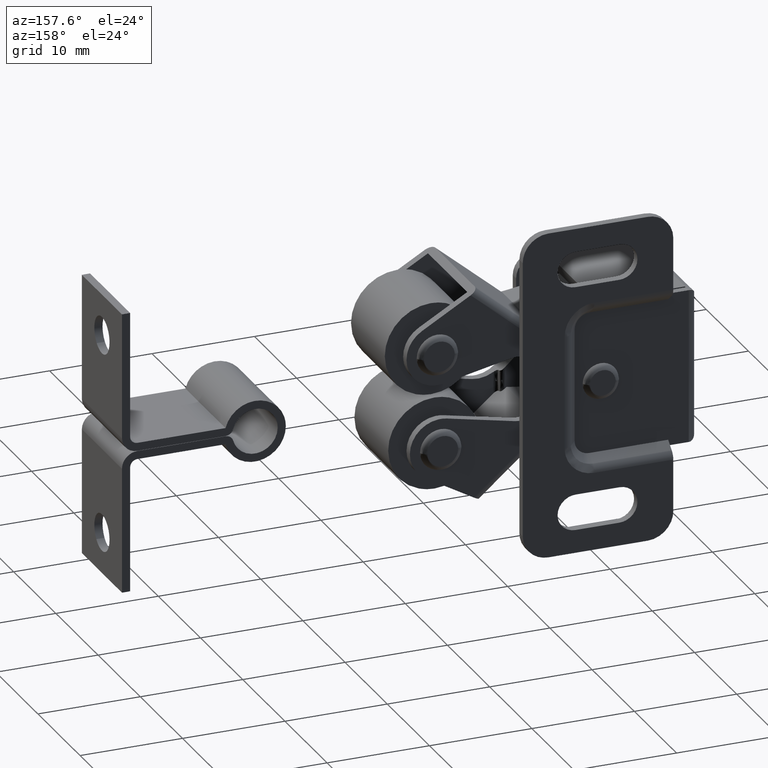
[diagram: clean part render]
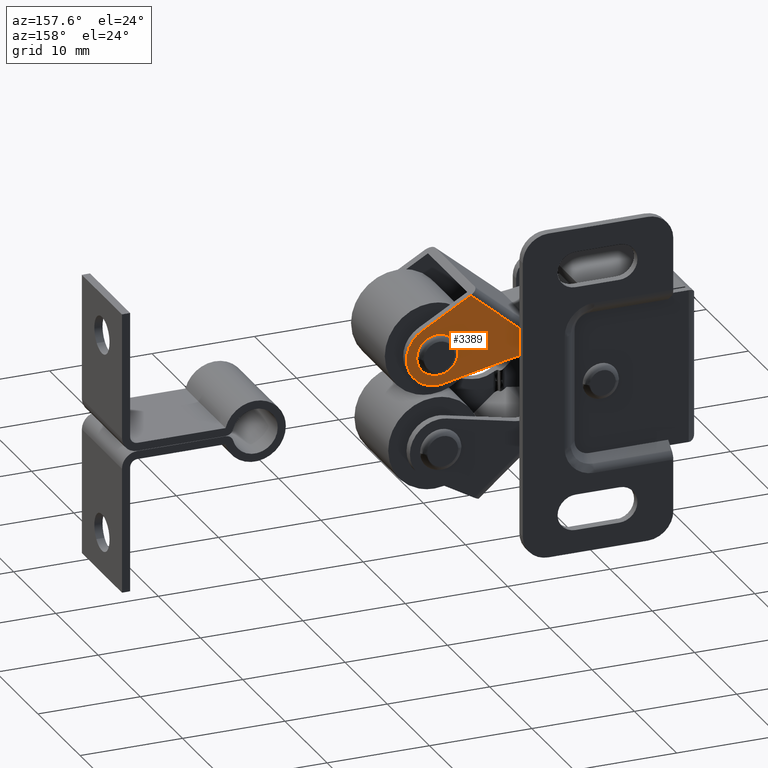
[diagram: same view with one face highlighted and labeled with its STEP entity id]
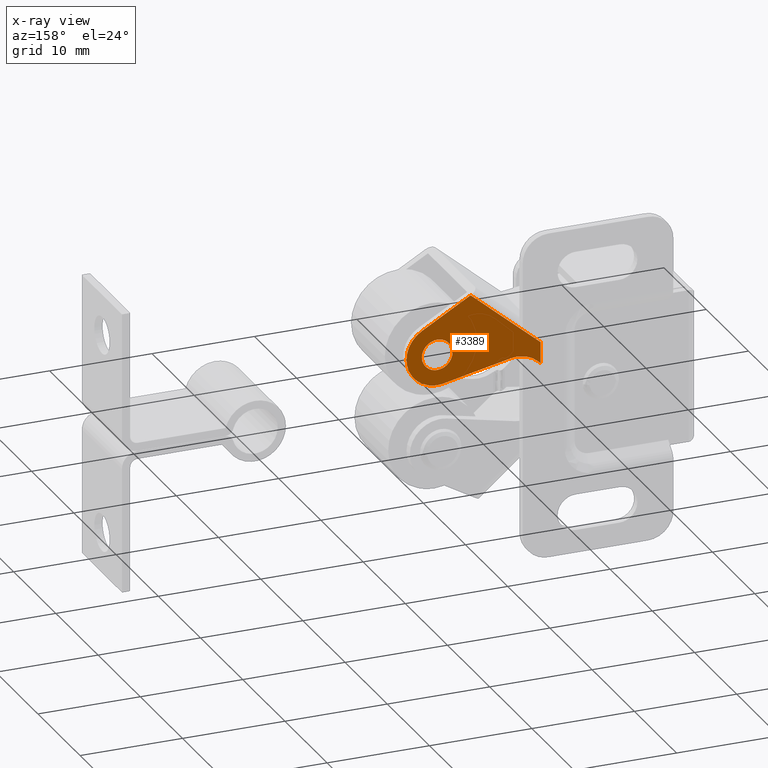
[diagram: x-ray of the same camera — body ghosted, the highlighted face saturated]
A machine part, auxiliary view. The second image highlights one B-rep face of the part: STEP entity #3389.
The next image is the same camera in x-ray: the body ghosted, the highlighted face saturated — about 0% of this face is hidden behind the body in this view.
In plain terms, the highlighted face is a freeform B-spline surface patch.
Its self-contained STEP definition (entity closure, byte-faithful):
#1043=CARTESIAN_POINT('',(23.594095799234140,4.700000011920779,5.513385625375348));
#1044=VERTEX_POINT('',#1043);
#1050=CARTESIAN_POINT('',(24.700012000000001,4.700000011920780,5.999999999999998));
#1051=VERTEX_POINT('',#1050);
#1052=CARTESIAN_POINT('',(23.594095799234140,4.700000011920779,5.513385625375348));
#1053=CARTESIAN_POINT('',(23.707794563583150,4.700000011920783,5.637627717664063));
#1054=CARTESIAN_POINT('',(23.925742891275199,4.700000011920776,5.806763507093655));
#1055=CARTESIAN_POINT('',(24.311433102443051,4.700000011920785,5.964648970616939));
#1056=CARTESIAN_POINT('',(24.557514574832521,4.700000011920768,6.000060767681152));
#1057=CARTESIAN_POINT('',(24.700012000000001,4.700000011920780,5.999999999999998));
#1058=B_SPLINE_CURVE_WITH_KNOTS('',3,(#1052,#1053,#1054,#1055,#1056,#1057),.UNSPECIFIED.,.F.,.U.,(4,1,1,4),(0.000000021328819,0.505210847690838,0.816095662292289,1.243581908247647),.UNSPECIFIED.);
#1059=EDGE_CURVE('',#1044,#1051,#1058,.T.);
#1061=CARTESIAN_POINT('',(26.200011999999319,4.700000011920780,4.499998569444311));
#1062=VERTEX_POINT('',#1061);
#1063=CARTESIAN_POINT('',(24.700012000000001,4.700000011920780,5.999999999999998));
#1064=CARTESIAN_POINT('',(24.835003995594811,4.700000011920781,6.000048619156637));
#1065=CARTESIAN_POINT('',(25.092693191531840,4.700000011920781,5.964968242826621));
#1066=CARTESIAN_POINT('',(25.401124239379399,4.700000011920786,5.837223423240698));
#1067=CARTESIAN_POINT('',(25.667123931221258,4.700000011920759,5.659453988228774));
#1068=CARTESIAN_POINT('',(25.929533706847121,4.700000011920817,5.397248733245958));
#1069=CARTESIAN_POINT('',(26.146699255495768,4.700000011920761,4.990856315215167));
#1070=CARTESIAN_POINT('',(26.200078063578150,4.700000011920778,4.659536330562017));
#1071=CARTESIAN_POINT('',(26.200011999999319,4.700000011920780,4.499998569444311));
#1072=B_SPLINE_CURVE_WITH_KNOTS('',3,(#1063,#1064,#1065,#1066,#1067,#1068,#1069,#1070,#1071),.UNSPECIFIED.,.F.,.U.,(4,1,1,1,1,1,4),(0.000000103832090,0.404972616782594,0.773154750371999,0.994062095879040,1.362192432291320,1.877640366561925,2.356254422811694),.UNSPECIFIED.);
#1073=EDGE_CURVE('',#1051,#1062,#1072,.T.);
#1075=CARTESIAN_POINT('',(25.805928200765859,4.700000011920779,3.486614374624649));
#1076=VERTEX_POINT('',#1075);
#1077=CARTESIAN_POINT('',(26.200011999999319,4.700000011920780,4.499998569444311));
#1078=CARTESIAN_POINT('',(26.200053407385120,4.700000011920775,4.372502576783834));
#1079=CARTESIAN_POINT('',(26.171752761726349,4.700000011920793,4.152318022775201));
#1080=CARTESIAN_POINT('',(26.044859814898370,4.700000011920777,3.802111941125314));
#1081=CARTESIAN_POINT('',(25.907773731179699,4.700000011920782,3.597665721904088));
#1082=CARTESIAN_POINT('',(25.805928200765859,4.700000011920779,3.486614374624649));
#1083=B_SPLINE_CURVE_WITH_KNOTS('',3,(#1077,#1078,#1079,#1080,#1081,#1082),.UNSPECIFIED.,.F.,.U.,(4,1,1,4),(0.000000028254000,0.382481926701507,0.660639802670365,1.112671104029824),.UNSPECIFIED.);
#1084=EDGE_CURVE('',#1062,#1076,#1083,.T.);
#1124=CARTESIAN_POINT('',(24.700012000000001,4.700000011920779,2.999999999999998));
#1125=VERTEX_POINT('',#1124);
#1126=CARTESIAN_POINT('',(25.805928200765859,4.700000011920779,3.486614374624649));
#1127=CARTESIAN_POINT('',(25.674784531261182,4.700000011920785,3.343195714687080));
#1128=CARTESIAN_POINT('',(25.419526054260899,4.700000011920765,3.155646287750409));
#1129=CARTESIAN_POINT('',(25.023845003995739,4.700000011920791,3.022908437656944));
#1130=CARTESIAN_POINT('',(24.803641465157131,4.700000011920776,2.999986374189757));
#1131=CARTESIAN_POINT('',(24.700012000000001,4.700000011920779,2.999999999999998));
#1132=B_SPLINE_CURVE_WITH_KNOTS('',3,(#1126,#1127,#1128,#1129,#1130,#1131),.UNSPECIFIED.,.F.,.U.,(4,1,1,4),(0.000000021327704,0.582931940729099,0.932686436546693,1.243581908247644),.UNSPECIFIED.);
#1133=EDGE_CURVE('',#1076,#1125,#1132,.T.);
#1135=CARTESIAN_POINT('',(23.200012000000680,4.700000011920779,4.500001430555681));
#1136=VERTEX_POINT('',#1135);
#1137=CARTESIAN_POINT('',(24.700012000000001,4.700000011920779,2.999999999999998));
#1138=CARTESIAN_POINT('',(24.491349140998441,4.700000011920777,2.999763459623790));
#1139=CARTESIAN_POINT('',(24.160214396344202,4.700000011920790,3.070249888358926));
#1140=CARTESIAN_POINT('',(23.789092998575430,4.700000011920776,3.292870955774542));
#1141=CARTESIAN_POINT('',(23.503189664273709,4.700000011920778,3.564874017312098));
#1142=CARTESIAN_POINT('',(23.266368109325651,4.700000011920778,3.960122645800154));
#1143=CARTESIAN_POINT('',(23.199849864962619,4.700000011920782,4.315902422920927));
#1144=CARTESIAN_POINT('',(23.200012000000680,4.700000011920779,4.500001430555681));
#1145=B_SPLINE_CURVE_WITH_KNOTS('',3,(#1137,#1138,#1139,#1140,#1141,#1142,#1143,#1144),.UNSPECIFIED.,.F.,.U.,(4,1,1,1,1,4),(0.000000103832539,0.625882202231172,0.994062095879022,1.288552167082864,1.804009362346913,2.356254422811693),.UNSPECIFIED.);
#1146=EDGE_CURVE('',#1125,#1136,#1145,.T.);
#1148=CARTESIAN_POINT('',(23.200012000000680,4.700000011920779,4.500001430555681));
#1149=CARTESIAN_POINT('',(23.199887232145450,4.700000011920777,4.673870101931653));
#1150=CARTESIAN_POINT('',(23.265242377548692,4.700000011920782,5.044659593757802));
#1151=CARTESIAN_POINT('',(23.460815246599498,4.700000011920780,5.368235286680646));
#1152=CARTESIAN_POINT('',(23.594095799234140,4.700000011920779,5.513385625375348));
#1153=B_SPLINE_CURVE_WITH_KNOTS('',3,(#1148,#1149,#1150,#1151,#1152),.UNSPECIFIED.,.F.,.U.,(4,1,4),(0.000000028254584,0.521572264103559,1.112671104029827),.UNSPECIFIED.);
#1154=EDGE_CURVE('',#1136,#1044,#1153,.T.);
#2347=CARTESIAN_POINT('',(14.600011999999820,4.700000011920820,4.040499300558204));
#2348=VERTEX_POINT('',#2347);
#2529=CARTESIAN_POINT('',(14.600011999999820,4.700000011920779,1.957326641893664));
#2530=VERTEX_POINT('',#2529);
#2531=CARTESIAN_POINT('',(14.600011999999820,4.700000011920779,1.957326641893664));
#2532=CARTESIAN_POINT('',(14.600011999999820,4.700000011920820,4.040499300558204));
#2533=QUASI_UNIFORM_CURVE('',1,(#2531,#2532),.UNSPECIFIED.,.F.,.U.);
#2534=EDGE_CURVE('',#2530,#2348,#2533,.T.);
#2576=CARTESIAN_POINT('',(21.438414051276101,4.700000011920780,9.826839497791989));
#2577=VERTEX_POINT('',#2576);
#2589=CARTESIAN_POINT('',(14.600011999999820,4.700000011920820,4.040499300558204));
#2590=CARTESIAN_POINT('',(21.438414051276101,4.700000011920780,9.826839497791989));
#2591=QUASI_UNIFORM_CURVE('',1,(#2589,#2590),.UNSPECIFIED.,.F.,.U.);
#2592=EDGE_CURVE('',#2348,#2577,#2591,.T.);
#3227=CARTESIAN_POINT('',(26.184767496563101,4.700000011920780,7.106818197616718));
#3228=VERTEX_POINT('',#3227);
#3229=CARTESIAN_POINT('',(26.184767496563101,4.700000011920780,7.106818197616718));
#3230=CARTESIAN_POINT('',(21.438414051276101,4.700000011920780,9.826839497791989));
#3231=QUASI_UNIFORM_CURVE('',1,(#3229,#3230),.UNSPECIFIED.,.F.,.U.);
#3232=EDGE_CURVE('',#3228,#2577,#3231,.T.);
#3274=CARTESIAN_POINT('',(24.086512066136951,4.700000011920779,1.563400294362529));
#3275=VERTEX_POINT('',#3274);
#3281=CARTESIAN_POINT('',(26.184767496563101,4.700000011920780,7.106818197616718));
#3282=CARTESIAN_POINT('',(26.386491943384168,4.700000011920788,6.991976167662097));
#3283=CARTESIAN_POINT('',(26.700288140562989,4.700000011920770,6.761248834046676));
#3284=CARTESIAN_POINT('',(27.120577976015781,4.700000011920792,6.304248904502788));
#3285=CARTESIAN_POINT('',(27.469727538438470,4.700000011920788,5.735062385711771));
#3286=CARTESIAN_POINT('',(27.674702008663200,4.700000011920749,5.062534789202100));
#3287=CARTESIAN_POINT('',(27.714206408515771,4.700000011920875,4.442004526809694));
#3288=CARTESIAN_POINT('',(27.659422102037230,4.700000011920628,3.934946638872971));
#3289=CARTESIAN_POINT('',(27.503872334355059,4.700000011921291,3.368022777500795));
#3290=CARTESIAN_POINT('',(27.213622876105951,4.700000011920520,2.815137749785422));
#3291=CARTESIAN_POINT('',(26.735916885455911,4.700000011920870,2.259426393288813));
#3292=CARTESIAN_POINT('',(26.176306015799000,4.700000011920769,1.852570710921108));
#3293=CARTESIAN_POINT('',(25.463580953762889,4.700000011920738,1.567968898615646));
#3294=CARTESIAN_POINT('',(24.767600268972679,4.700000011920908,1.472255539491455));
#3295=CARTESIAN_POINT('',(24.292086588198519,4.700000011920641,1.520433330248204));
#3296=CARTESIAN_POINT('',(24.086512066136951,4.700000011920779,1.563400294362529));
#3297=B_SPLINE_CURVE_WITH_KNOTS('',3,(#3281,#3282,#3283,#3284,#3285,#3286,#3287,#3288,#3289,#3290,#3291,#3292,#3293,#3294,#3295,#3296),.UNSPECIFIED.,.F.,.U.,(4,1,1,1,1,1,1,1,1,1,1,1,1,4),(0.000000229174743,0.696363336508997,1.160665972334273,1.857064010070521,2.686133706727247,3.249890423030236,3.714174930596840,4.211611859619980,5.007435973136651,5.571186857713464,6.400255850569346,7.063512773440091,7.859400212480794,8.489456662233417),.UNSPECIFIED.);
#3298=EDGE_CURVE('',#3228,#3275,#3297,.T.);
#3309=CARTESIAN_POINT('',(17.513509200063702,4.700000011920779,2.936599650024123));
#3310=VERTEX_POINT('',#3309);
#3316=CARTESIAN_POINT('',(17.513509200063702,4.700000011920779,2.936599650024123));
#3317=CARTESIAN_POINT('',(24.086512066136951,4.700000011920779,1.563400294362529));
#3318=QUASI_UNIFORM_CURVE('',1,(#3316,#3317),.UNSPECIFIED.,.F.,.U.);
#3319=EDGE_CURVE('',#3310,#3275,#3318,.T.);
#3342=CARTESIAN_POINT('',(14.854552999999980,4.700000011920779,2.194571999999999));
#3343=VERTEX_POINT('',#3342);
#3349=CARTESIAN_POINT('',(14.854552999999980,4.700000011920779,2.194571999999999));
#3350=CARTESIAN_POINT('',(15.105777026079570,4.700000011920773,2.429094949197461));
#3351=CARTESIAN_POINT('',(15.550321693974031,4.700000011920789,2.718807628759100));
#3352=CARTESIAN_POINT('',(16.263023027010949,4.700000011920760,2.952565772502841));
#3353=CARTESIAN_POINT('',(16.875340004626391,4.700000011920843,3.023465987634661));
#3354=CARTESIAN_POINT('',(17.308767258389668,4.700000011920720,2.979402242132876));
#3355=CARTESIAN_POINT('',(17.513509200063702,4.700000011920779,2.936599650024123));
#3356=B_SPLINE_CURVE_WITH_KNOTS('',3,(#3349,#3350,#3351,#3352,#3353,#3354,#3355),.UNSPECIFIED.,.F.,.U.,(4,1,1,1,4),(0.000000032265302,1.030913098050805,1.568765692356744,2.241111877919443,2.868620279197131),.UNSPECIFIED.);
#3357=EDGE_CURVE('',#3343,#3310,#3356,.T.);
#3363=CARTESIAN_POINT('',(13.945684708043540,4.700000011920819,1.084535909114230));
#3364=CARTESIAN_POINT('',(28.353985635865001,4.700000011920819,1.084535909114230));
#3365=CARTESIAN_POINT('',(13.945684708043540,4.700000011920820,10.242743381263830));
#3366=CARTESIAN_POINT('',(28.353985635865001,4.700000011920820,10.242743381263830));
#3367=B_SPLINE_SURFACE_WITH_KNOTS('',1,1,((#3363,#3365),(#3364,#3366)),.UNSPECIFIED.,.F.,.F.,.U.,(2,2),(2,2),(0.0,14.408300927821470),(0.0,9.158207472149597),.UNSPECIFIED.);
#3368=CARTESIAN_POINT('',(14.600011999999820,4.700000011920779,1.957326641893664));
#3369=CARTESIAN_POINT('',(14.854552999999980,4.700000011920779,2.194571999999999));
#3370=QUASI_UNIFORM_CURVE('',1,(#3368,#3369),.UNSPECIFIED.,.F.,.U.);
#3371=EDGE_CURVE('',#2530,#3343,#3370,.T.);
#3372=ORIENTED_EDGE('',*,*,#3371,.F.);
#3373=ORIENTED_EDGE('',*,*,#2534,.T.);
#3374=ORIENTED_EDGE('',*,*,#2592,.T.);
#3375=ORIENTED_EDGE('',*,*,#3232,.F.);
#3376=ORIENTED_EDGE('',*,*,#3298,.T.);
#3377=ORIENTED_EDGE('',*,*,#3319,.F.);
#3378=ORIENTED_EDGE('',*,*,#3357,.F.);
#3379=EDGE_LOOP('',(#3372,#3373,#3374,#3375,#3376,#3377,#3378));
#3380=FACE_OUTER_BOUND('',#3379,.T.);
#3381=ORIENTED_EDGE('',*,*,#1146,.F.);
#3382=ORIENTED_EDGE('',*,*,#1133,.F.);
#3383=ORIENTED_EDGE('',*,*,#1084,.F.);
#3384=ORIENTED_EDGE('',*,*,#1073,.F.);
#3385=ORIENTED_EDGE('',*,*,#1059,.F.);
#3386=ORIENTED_EDGE('',*,*,#1154,.F.);
#3387=EDGE_LOOP('',(#3381,#3382,#3383,#3384,#3385,#3386));
#3388=FACE_BOUND('',#3387,.T.);
#3389=ADVANCED_FACE('',(#3380,#3388),#3367,.F.);